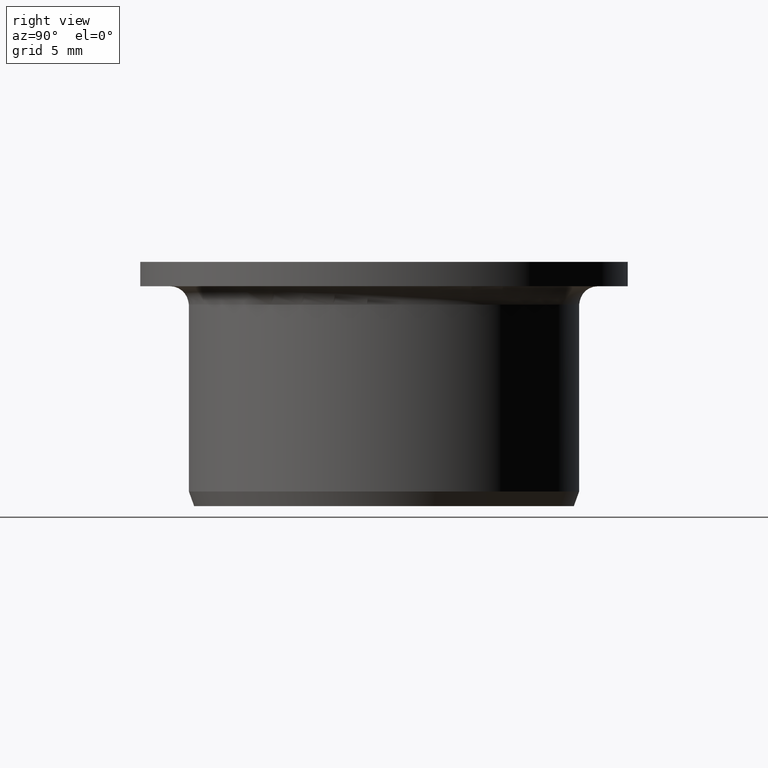
[diagram: clean part render]
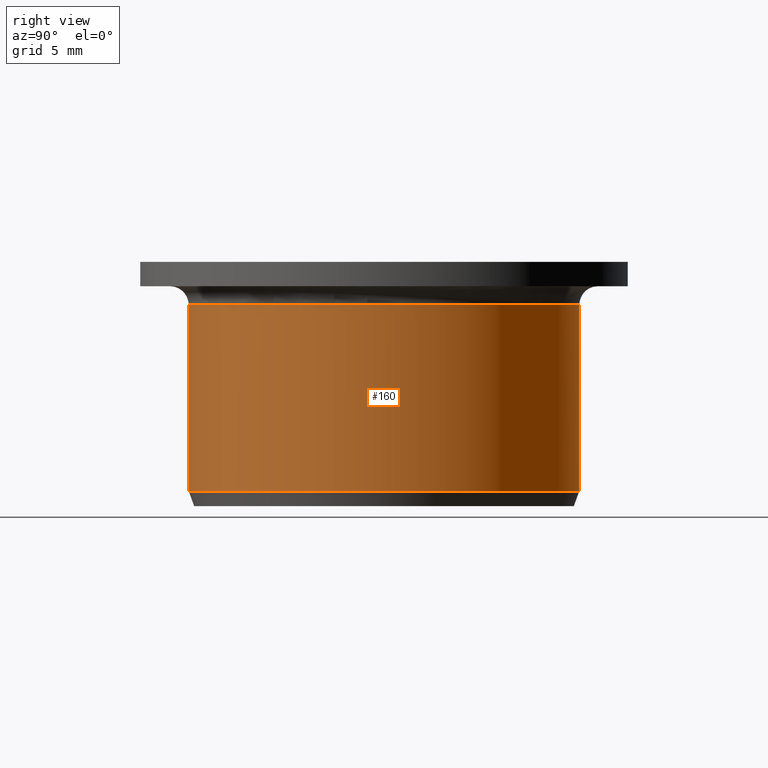
[diagram: same view with one face highlighted and labeled with its STEP entity id]
A machine part, right view. The second image highlights one B-rep face of the part: STEP entity #160.
In plain terms, the highlighted cylindrical surface (partial cylindrical patch) has radius 16 mm, axis along (-0, 0, -1).
Its self-contained STEP definition (entity closure, byte-faithful):
#160=ADVANCED_FACE('',(#181),#182,.T.);
#181=FACE_OUTER_BOUND('',#206,.T.);
#182=CYLINDRICAL_SURFACE('',#207,0.016);
#206=EDGE_LOOP('',(#271,#272,#273,#274));
#207=AXIS2_PLACEMENT_3D('',#275,#276,#277);
#271=ORIENTED_EDGE('',*,*,#330,.T.);
#272=ORIENTED_EDGE('',*,*,#336,.T.);
#273=ORIENTED_EDGE('',*,*,#337,.F.);
#274=ORIENTED_EDGE('',*,*,#317,.F.);
#275=CARTESIAN_POINT('',(0.0,0.0,0.0));
#276=DIRECTION('',(0.0,-6.12323399573677E-017,-1.0));
#277=DIRECTION('',(0.0,1.0,-6.12323399573677E-017));
#317=EDGE_CURVE('',#351,#353,#354,.T.);
#330=EDGE_CURVE('',#351,#374,#376,.T.);
#336=EDGE_CURVE('',#374,#384,#385,.T.);
#337=EDGE_CURVE('',#353,#384,#386,.T.);
#351=VERTEX_POINT('',#421);
#353=VERTEX_POINT('',#436);
#354=LINE('',#437,#438);
#374=VERTEX_POINT('',#486);
#376=CIRCLE('',#501,0.016);
#384=VERTEX_POINT('',#512);
#385=LINE('',#513,#514);
#386=CIRCLE('',#515,0.016);
#421=CARTESIAN_POINT('',(0.0159913038571897,-0.000527447577519833,0.0165));
#436=CARTESIAN_POINT('',(0.0159913038571897,-0.000527447577519834,0.0012));
#437=CARTESIAN_POINT('',(0.0159913038571897,-0.000527447577519834,-2.73761623827334E-020));
#438=VECTOR('',#529,1.0);
#486=CARTESIAN_POINT('',(0.0159913038571897,0.000527447577519836,0.0165));
#501=AXIS2_PLACEMENT_3D('',#547,#548,#549);
#512=CARTESIAN_POINT('',(0.0159913038571897,0.000527447577519836,0.0012));
#513=CARTESIAN_POINT('',(0.0159913038571897,0.000527447577519835,1.90400244105405E-020));
#514=VECTOR('',#559,1.0);
#515=AXIS2_PLACEMENT_3D('',#560,#561,#562);
#529=DIRECTION('',(0.0,-6.12323399573677E-017,-1.0));
#547=CARTESIAN_POINT('',(0.0,0.0,0.0165));
#548=DIRECTION('',(0.0,-6.12323399573677E-017,-1.0));
#549=DIRECTION('',(0.0,1.0,-6.12323399573677E-017));
#559=DIRECTION('',(0.0,-6.12323399573677E-017,-1.0));
#560=CARTESIAN_POINT('',(0.0,0.0,0.0012));
#561=DIRECTION('',(0.0,-6.12323399573677E-017,-1.0));
#562=DIRECTION('',(0.0,1.0,-6.12323399573677E-017));